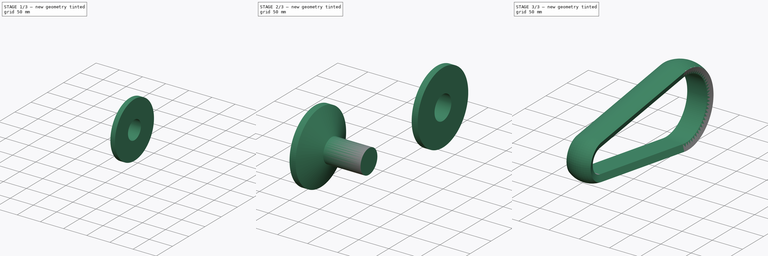
[diagram: build sequence overview — one tinted view per stage of 3, left to right]
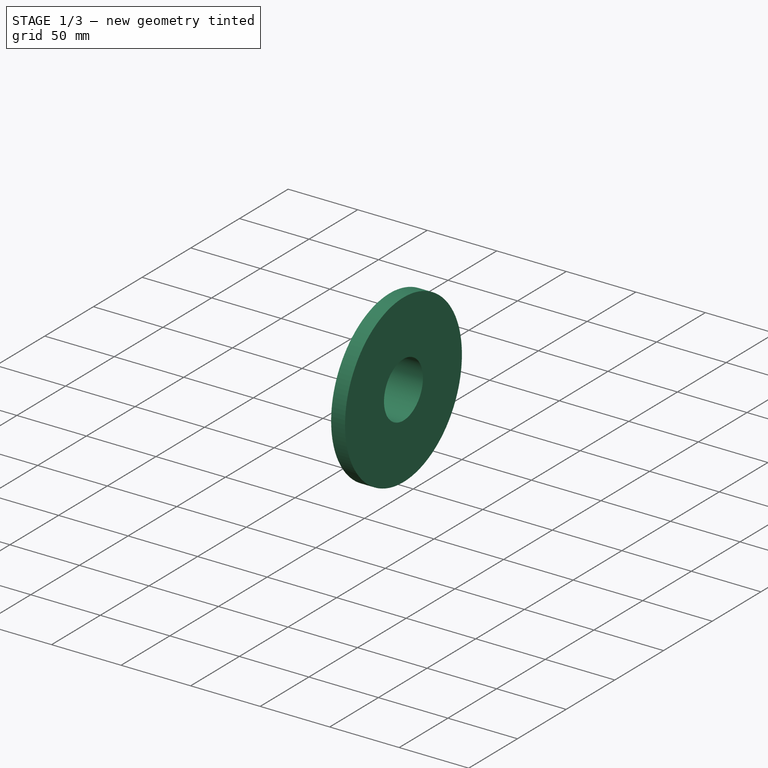
[diagram: stage 1 of 3 — iso view after this stage's code; geometry added in this stage tinted green]
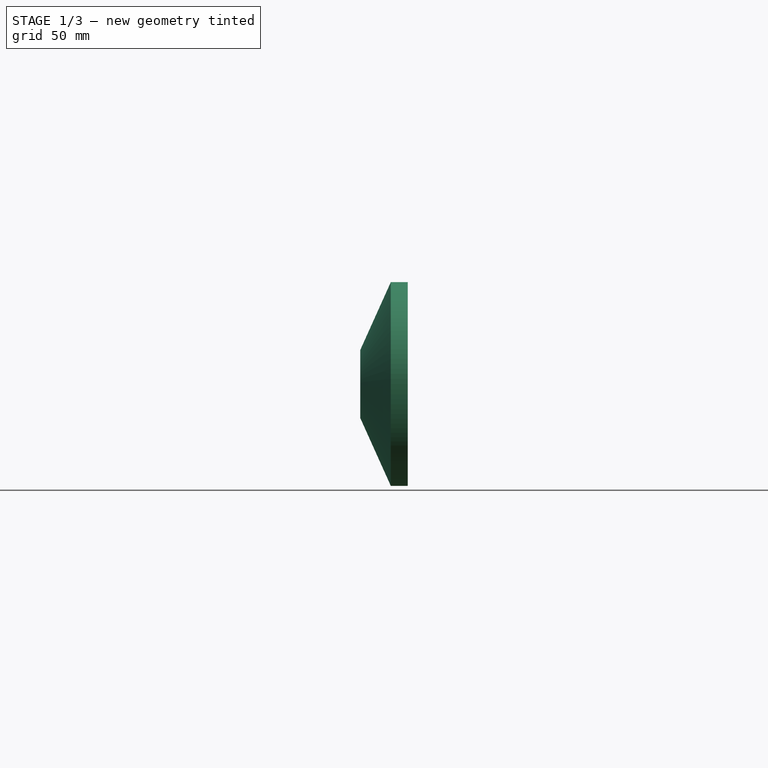
[diagram: stage 1 of 3 — front view after this stage's code; geometry added in this stage tinted green]
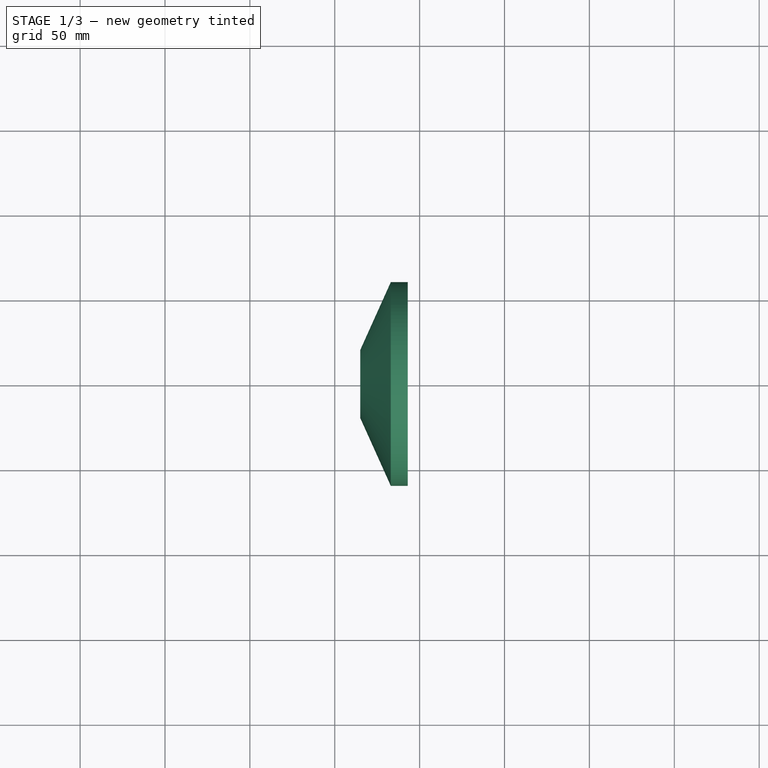
[diagram: stage 1 of 3 — top view after this stage's code; geometry added in this stage tinted green]
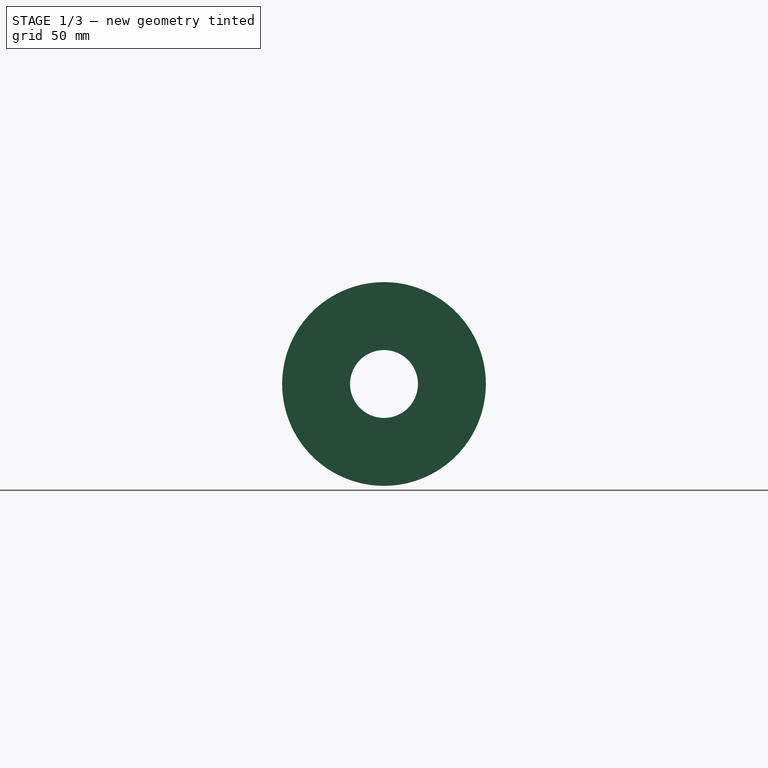
[diagram: stage 1 of 3 — right view after this stage's code; geometry added in this stage tinted green]
FCSTD DOCUMENT  (FreeCAD 0.18R16093 +53 (Git))
Label: CVT V BELT
License: All rights reserved
LicenseURL: http://en.wikipedia.org/wiki/All_rights_reserved
objects: App::DocumentObjectGroupPython×6, Sketcher::SketchObject×4, PartDesign::Body×4, Part::FeaturePython×4, PartDesign::Revolution×2, Part::Sweep×1, Spreadsheet::Sheet×1
note: 17 computed .brp shape members not serialized (recipe doc carries the construction recipe); baked Part::Feature solids carry a one-line shape summary decoded from their .brp

FEATURE [PartDesign::Body] Body
  Group = -> [Sketch,Revolution]
  Origin = -> Origin
  Tip = -> Revolution
FEATURE [Sketcher::SketchObject] Sketch001
  MapMode = 5
  Placement = pos=(0,0,0) rot=(1,0,0;1.5708rad)
  Support = -> [XZ_Plane001]
  sketch-geometry (4):
    g0: LineSegment StartX=0 StartY=20 StartZ=0 EndX=18 EndY=60 EndZ=0
    g1: LineSegment StartX=18 StartY=60 StartZ=0 EndX=28 EndY=60 EndZ=0
    g2: LineSegment StartX=28 StartY=60 StartZ=0 EndX=28 EndY=20 EndZ=0
    g3: LineSegment StartX=28 StartY=20 StartZ=0 EndX=0 EndY=20 EndZ=0
  constraints (12):
    c: PointOnObject(g0,g-2)
    c: Coincident(g0,g1)
    c: Horizontal(g1)
    c: Coincident(g1,g2)
    c: Vertical(g2)
    c: Coincident(g2,g3)
    c: Coincident(g3,g0)
    c: Horizontal(g3)
    c: DistanceX(g0,g0) = 18
    c: DistanceX(g1,g1) = 10
    c: DistanceY(g-1,g0) = 20
    c: DistanceY(g-1,g1) = 60
FEATURE [PartDesign::Revolution] Revolution001
  Angle = 360
  Axis = (1,0,0)
  Base = (0,0,0)
  Placement = pos=(0,0,0) rot=(1,0,0;1.5708rad)
  Profile = -> Sketch001
  ReferenceAxis = -> X_Axis001
FEATURE [Part::FeaturePython] Clone001  label="Revolution002"  # Draft clone (typed FeaturePython)
  AttacherType = Attacher::AttachEngine3D
  Fuse = false
  Objects = -> [Revolution001]
  Placement = pos=(15,0,0) rot=(1,0,0;4.88692rad)
  Scale = (1,1,1)
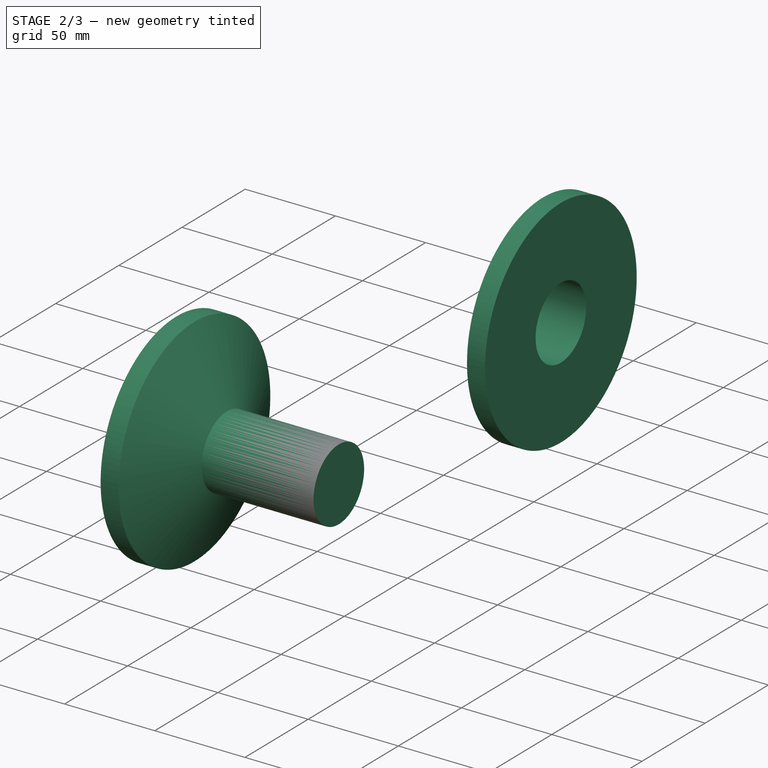
[diagram: stage 2 of 3 — iso view after this stage's code; geometry added in this stage tinted green]
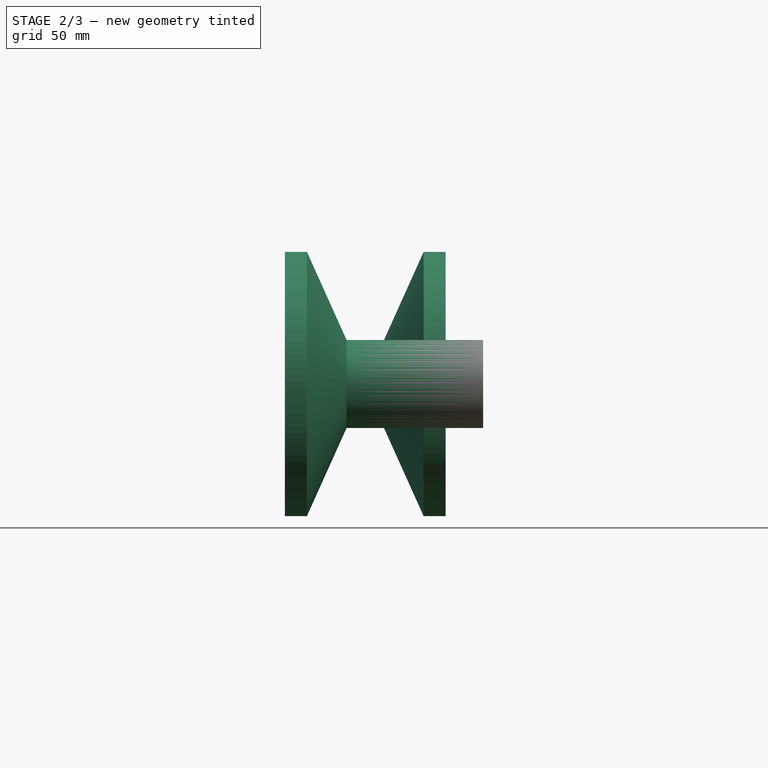
[diagram: stage 2 of 3 — front view after this stage's code; geometry added in this stage tinted green]
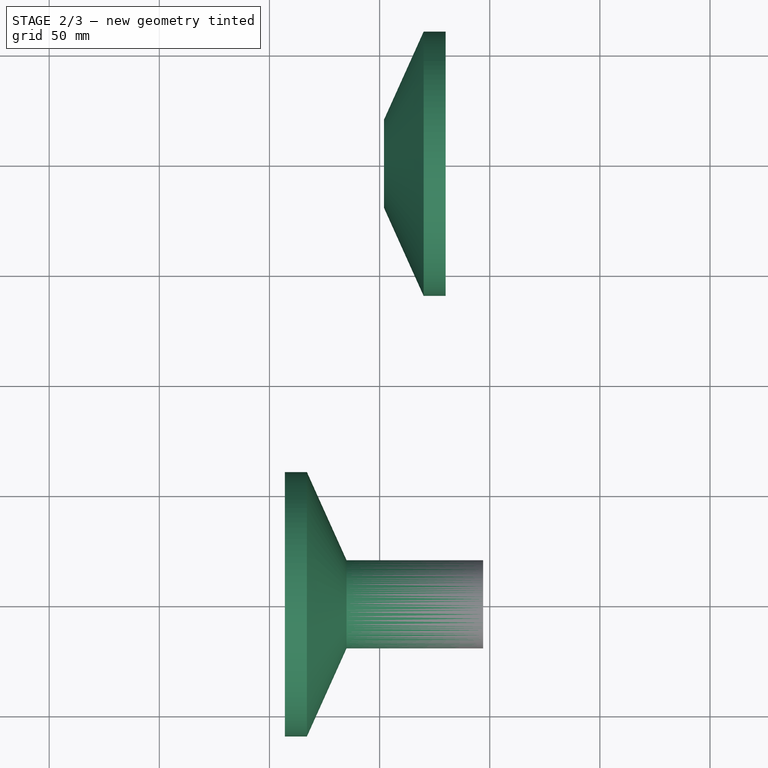
[diagram: stage 2 of 3 — top view after this stage's code; geometry added in this stage tinted green]
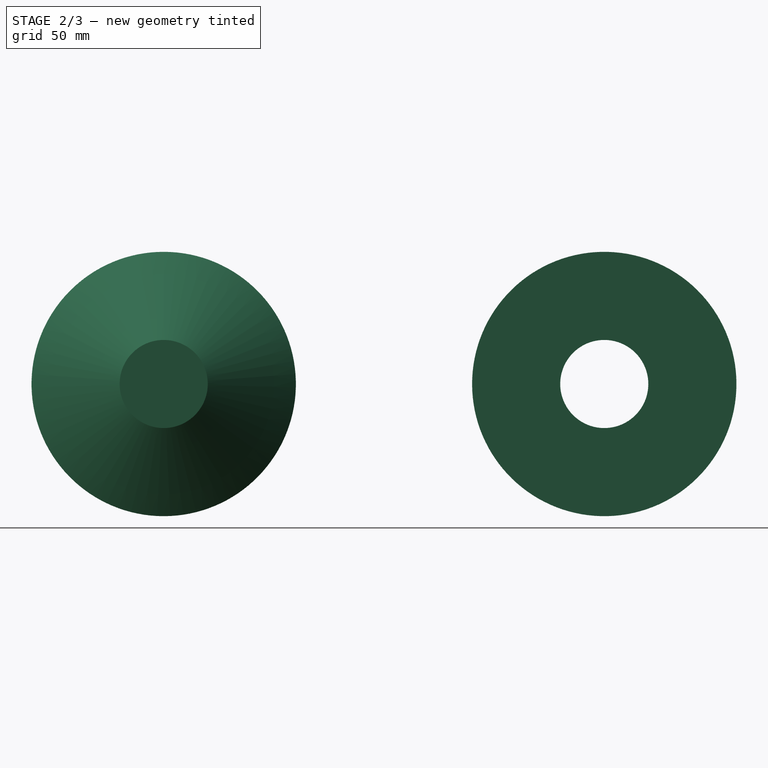
[diagram: stage 2 of 3 — right view after this stage's code; geometry added in this stage tinted green]
FEATURE [Sketcher::SketchObject] Sketch
  MapMode = 5
  Placement = pos=(0,0,0) rot=(1,0,0;1.5708rad)
  Support = -> [XZ_Plane]
  sketch-geometry (6):
    g0: LineSegment StartX=0 StartY=20 StartZ=0 EndX=-18 EndY=60 EndZ=0
    g1: LineSegment StartX=-18 StartY=60 StartZ=0 EndX=-28 EndY=60 EndZ=0
    g2: LineSegment StartX=-28 StartY=60 StartZ=0 EndX=-28 EndY=0 EndZ=0
    g3: LineSegment StartX=-28 StartY=0 StartZ=0 EndX=62 EndY=0 EndZ=0
    g4: LineSegment StartX=62 StartY=0 StartZ=0 EndX=62 EndY=20 EndZ=0
    g5: LineSegment StartX=62 StartY=20 StartZ=0 EndX=0 EndY=20 EndZ=0
  constraints (18):
    c: Coincident(g0,g1)
    c: Horizontal(g1)
    c: Coincident(g1,g2)
    c: PointOnObject(g2,g-1)
    c: Vertical(g2)
    c: Coincident(g2,g3)
    c: Horizontal(g3)
    c: Coincident(g3,g4)
    c: Vertical(g4)
    c: Coincident(g4,g5)
    c: Coincident(g5,g0)
    c: PointOnObject(g0,g-2)
    c: Horizontal(g5)
    c: DistanceX(g3,g3) = 90
    c: DistanceX(g1,g1) = 10
    c: DistanceX(g0,g0) = 18
    c: DistanceY(g2,g2) = 60
    c: DistanceY(g4,g4) = 20
FEATURE [PartDesign::Revolution] Revolution
  Angle = 360
  Axis = (1,0,0)
  Base = (0,0,0)
  Placement = pos=(0,0,0) rot=(1,0,0;1.5708rad)
  Profile = -> Sketch
  ReferenceAxis = -> X_Axis
FEATURE [PartDesign::Body] Body001
  Group = -> [Sketch001,Revolution001]
  Origin = -> Origin001
  Tip = -> Revolution001
FEATURE [Part::FeaturePython] Clone  label="Body002"  # Draft clone (typed FeaturePython)
  AttacherType = Attacher::AttachEngine3D
  Fuse = false
  Objects = -> [Body]
  Placement = pos=(-15,0,0) rot=(1,0,0;4.88692rad)
  Scale = (1,1,1)
FEATURE [Part::FeaturePython] Clone003  label="Revolution003"  # Draft clone (typed FeaturePython)
  AttacherType = Attacher::AttachEngine3D
  Fuse = false
  Objects = -> [Clone001]
  Placement = pos=(2,200,0) rot=(1,0,0;3.83972rad)
  Scale = (1,1,1)
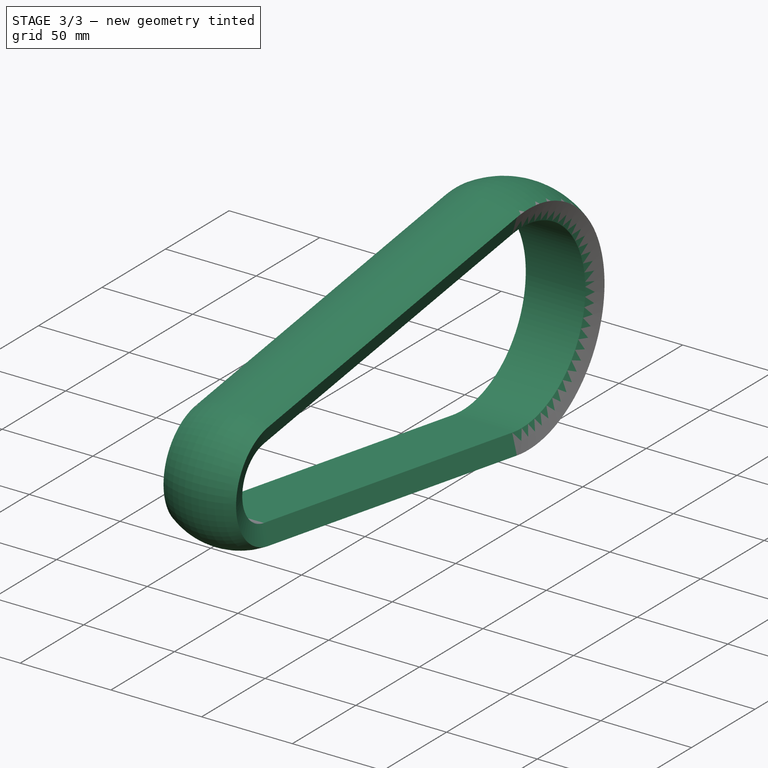
[diagram: stage 3 of 3 — iso view after this stage's code; geometry added in this stage tinted green]
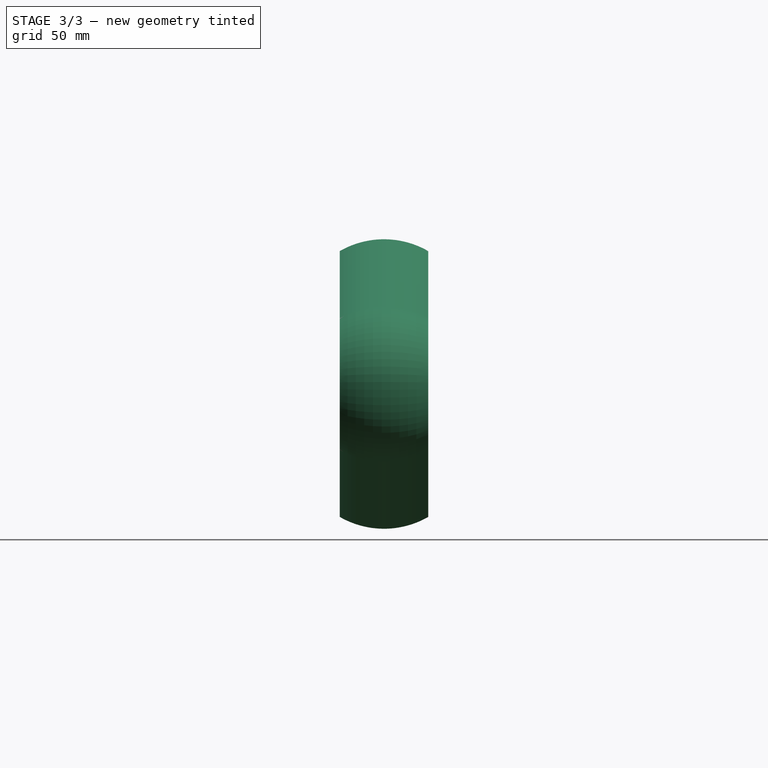
[diagram: stage 3 of 3 — front view after this stage's code; geometry added in this stage tinted green]
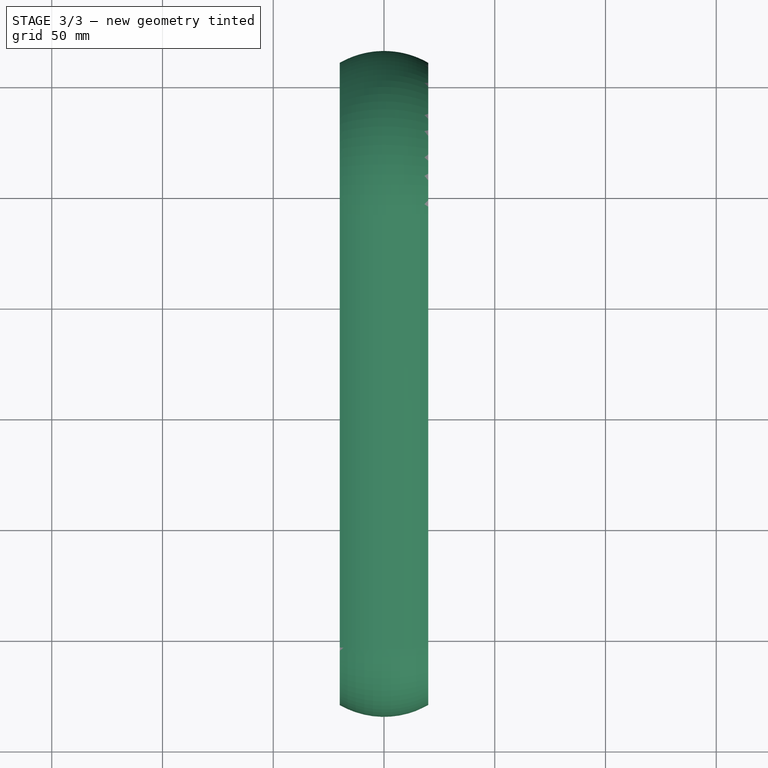
[diagram: stage 3 of 3 — top view after this stage's code; geometry added in this stage tinted green]
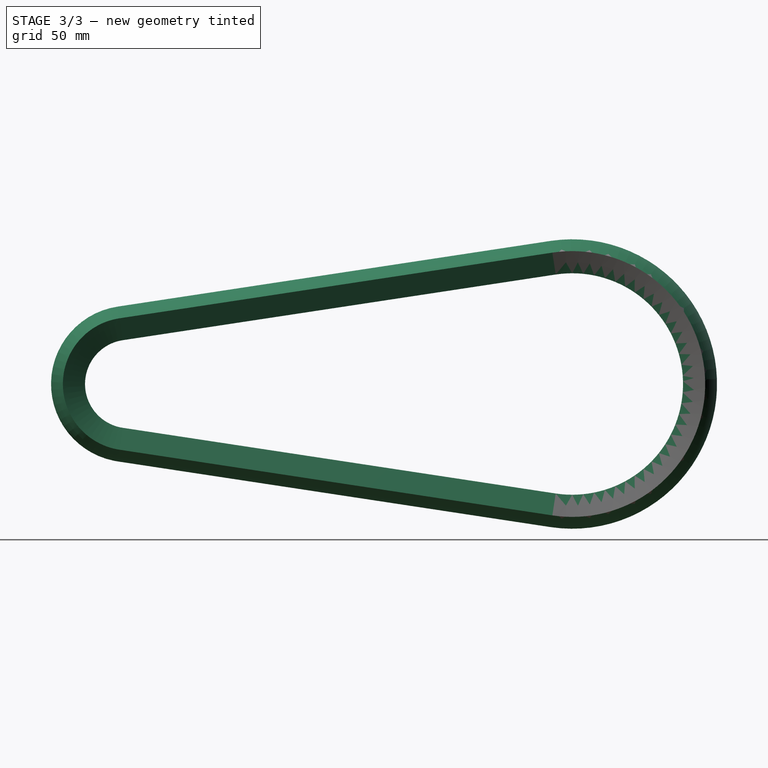
[diagram: stage 3 of 3 — right view after this stage's code; geometry added in this stage tinted green]
FEATURE [Part::FeaturePython] Clone002  label="Body003"  # Draft clone (typed FeaturePython)
  AttacherType = Attacher::AttachEngine3D
  Fuse = false
  Objects = -> [Clone]
  Placement = pos=(-2,200,0) rot=(1,0,0;3.83972rad)
  Scale = (1,1,1)
FEATURE [Sketcher::SketchObject] Sketch002
  MapMode = 5
  Support = -> [XY_Plane002]
  expr: Constraints[13] = Spreadsheet.r1
  sketch-geometry (5):
    g0: LineSegment [constr] StartX=-20 StartY=-30 StartZ=0 EndX=20 EndY=-30 EndZ=0
    g1: LineSegment StartX=20 StartY=-30 StartZ=0 EndX=16.4 EndY=-20 EndZ=0
    g2: LineSegment StartX=16.4 StartY=-20 StartZ=0 EndX=-16.4 EndY=-20 EndZ=0
    g3: LineSegment StartX=-16.4 StartY=-20 StartZ=0 EndX=-20 EndY=-30 EndZ=0
    g4: ArcOfCircle CenterX=-9e-16 CenterY=4.64102 CenterZ=0 NormalX=0 NormalY=0 NormalZ=1 AngleXU=0 Radius=40 StartAngle=4.18879 EndAngle=5.23599
  constraints (14):
    c: Coincident(g0,g1)
    c: Coincident(g1,g2)
    c: Horizontal(g2)
    c: Coincident(g2,g3)
    c: Coincident(g3,g0)
    c: Equal(g3,g1)
    c: DistanceX(g0,g0) = 40
    c: DistanceX(g2,g2) = 32.8
    c: Coincident(g4,g0)
    c: Coincident(g4,g0)
    c: Radius(g4) = 40
    c: DistanceY(g0,g2) = 10
    c: Symmetric(g0,g0,g-2)
    c: DistanceY(g0,g-1) = 30
FEATURE [PartDesign::Body] Body002  label="Body004"
  Group = -> [Sketch002]
  Origin = -> Origin002
FEATURE [Sketcher::SketchObject] Sketch003
  MapMode = 5
  Placement = pos=(0,0,0) rot=(0.57735,0.57735,0.57735;2.0944rad)
  Support = -> [YZ_Plane003]
  expr: Constraints[8] = Spreadsheet.r2
  expr: Constraints[7] = Spreadsheet.r1
  sketch-geometry (4):
    g0: LineSegment StartX=-4.5 StartY=-29.6606 StartZ=0 EndX=191 EndY=-59.3212 EndZ=0
    g1: ArcOfCircle CenterX=200 CenterY=0 CenterZ=0 NormalX=0 NormalY=0 NormalZ=1 AngleXU=0 Radius=60 StartAngle=4.56182 EndAngle=8.00455
    g2: LineSegment StartX=191 StartY=59.3212 StartZ=0 EndX=-4.5 EndY=29.6606 EndZ=0
    g3: ArcOfCircle CenterX=0 CenterY=0 CenterZ=0 NormalX=0 NormalY=0 NormalZ=1 AngleXU=0 Radius=30 StartAngle=1.72136 EndAngle=4.56182
  constraints (9):
    c: Tangent(g0,g1) = -1.5708
    c: Tangent(g1,g2) = -1.5708
    c: Tangent(g2,g3) = -1.5708
    c: Tangent(g3,g0) = -1.5708
    c: Coincident(g3,g-1)
    c: PointOnObject(g1,g-1)
    c: DistanceX(g-1,g1) = 200
    c: Radius(g3) = 30
    c: Radius(g1) = 60
FEATURE [PartDesign::Body] Body003  label="Body005"
  Group = -> [Sketch003]
  Origin = -> Origin003
FEATURE [Part::Sweep] Sweep
  Frenet = true
  Sections = -> [Sketch002]
  Solid = true
  Spine = -> Sketch003 [Edge4,Edge3,Edge2,Edge1]
  Transition = 1
FEATURE [App::DocumentObjectGroupPython] My_Placer  # scripted group (container) (typed FeaturePython)
  Placement = pos=(200,0,0) rot=(0,0,1;6.28318rad)
  RotAxis = (0,0,1)
  RotCenter = (0,0,0)
  arc = time*360
  arc0 = 0
  arc1 = 90
  time = 1
  x = x0+(x1-x0)*time
  x0 = 0
  x1 = 200
  y = 0
  y0 = 0
  y1 = 0
  z = 0
  z0 = 0
  z1 = 0
FEATURE [Spreadsheet::Sheet] Spreadsheet
  cells = A1=r1=; B1(r1)==60 - 30 * C1; C1==My_Manager.step / 100; A2=r2=; B2(r2)==60 - 30 * (1 - C1)
FEATURE [App::DocumentObjectGroupPython] My_Placer001  # scripted group (container) (typed FeaturePython)
  Placement = pos=(-15,0,0) rot=(1,0,0;17.4533rad)
  RotAxis = (1,0,0)
  RotCenter = (0,0,0)
  arc = time*1000
  arc0 = 0
  arc1 = 90
  target = -> Clone
  time = 1
  x = -2-time*13
  x0 = 0
  x1 = 200
  y = 0
  y0 = 0
  y1 = 0
  z = 0
  z0 = 0
  z1 = 0
FEATURE [App::DocumentObjectGroupPython] My_Placer002  # scripted group (container) (typed FeaturePython)
  Placement = pos=(15,0,0) rot=(1,0,0;17.4533rad)
  RotAxis = (1,0,0)
  RotCenter = (0,0,0)
  arc = time*1000
  arc0 = 0
  arc1 = 90
  target = -> Clone001
  time = 1
  x = 2+time*13
  x0 = 0
  x1 = 200
  y = 0
  y0 = 0
  y1 = 0
  z = 0
  z0 = 0
  z1 = 0
FEATURE [App::DocumentObjectGroupPython] My_Placer003  # scripted group (container) (typed FeaturePython)
  Placement = pos=(-2,200,0) rot=(1,0,0;-8.72665rad)
  RotAxis = (1,0,0)
  RotCenter = (0,0,0)
  arc = -y0
  arc0 = 0
  arc1 = 90
  target = -> Clone002
  time = 1
  x = -15+time*13
  x0 = 30
  x1 = 60
  y = 200
  y0 = 500
  y1 = 0
  z = 0
  z0 = 0
  z1 = 0
  expr: y0 = 1000 * x0 / x1
  expr: x1 = 30 + time * 30
  expr: x0 = 60 - time * 30
FEATURE [App::DocumentObjectGroupPython] My_Placer004  # scripted group (container) (typed FeaturePython)
  Placement = pos=(2,200,0) rot=(1,0,0;-8.72665rad)
  RotAxis = (1,0,0)
  RotCenter = (0,0,0)
  arc = -y0
  arc0 = 0
  arc1 = 90
  target = -> Clone003
  time = 1
  x = 15-time*13
  x0 = 30
  x1 = 60
  y = 200
  y0 = 500
  y1 = 0
  z = 0
  z0 = 0
  z1 = 0
  expr: y0 = 1000 * x0 / x1
  expr: x1 = 30 + time * 30
  expr: x0 = 60 - time * 30
FEATURE [App::DocumentObjectGroupPython] My_Manager  # scripted group (container) (typed FeaturePython)
  Group = -> [My_Placer,My_Placer001,My_Placer002,My_Placer003,My_Placer004]
  intervall = 100
  sleeptime = 0.02
  start = 0
  step = 100
  text = NO
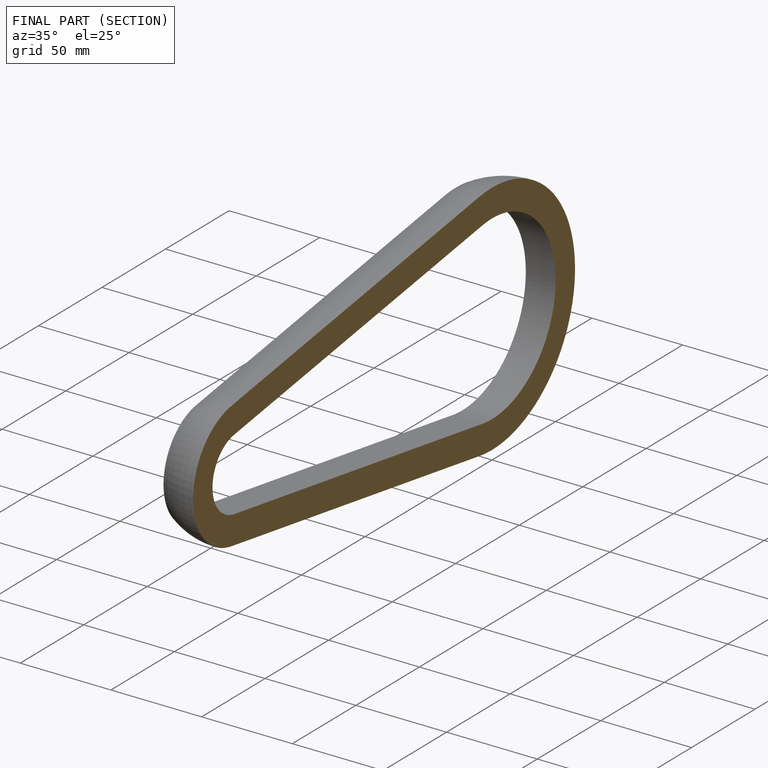
[diagram: finished part — half-section view (interior)]
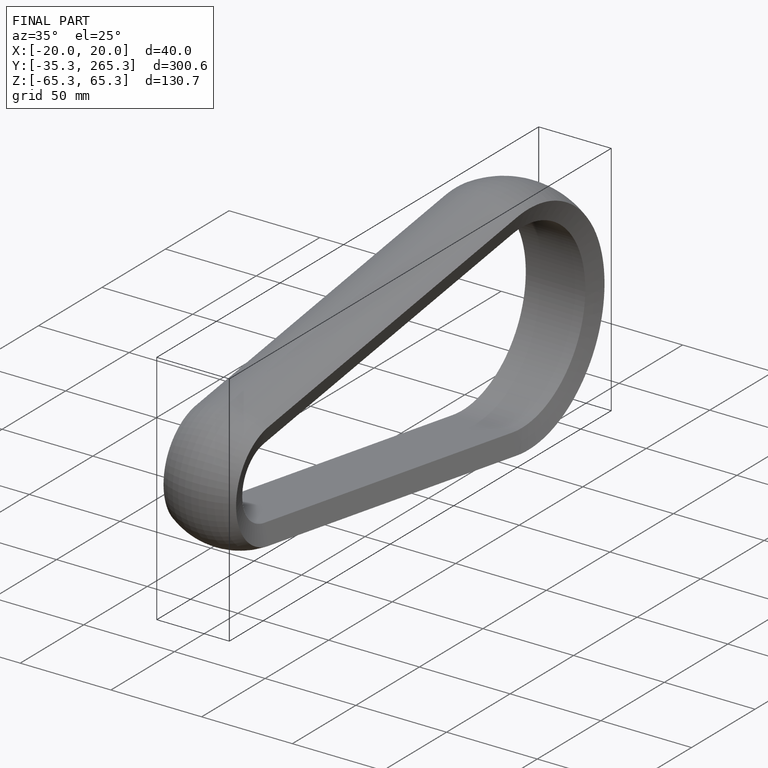
[diagram: finished part — iso view with bounding-box wireframe]
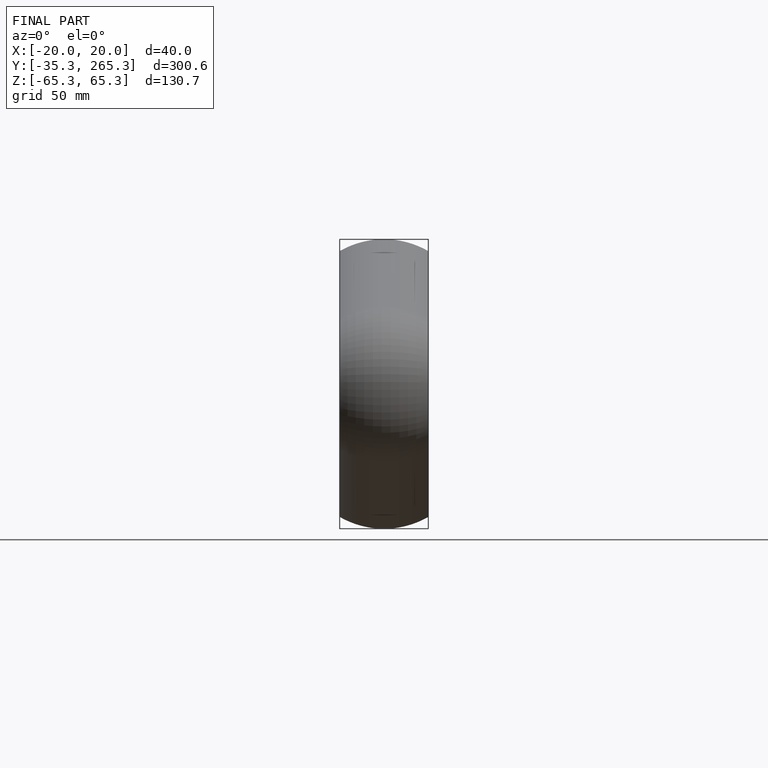
[diagram: finished part — front view with bounding-box wireframe]
